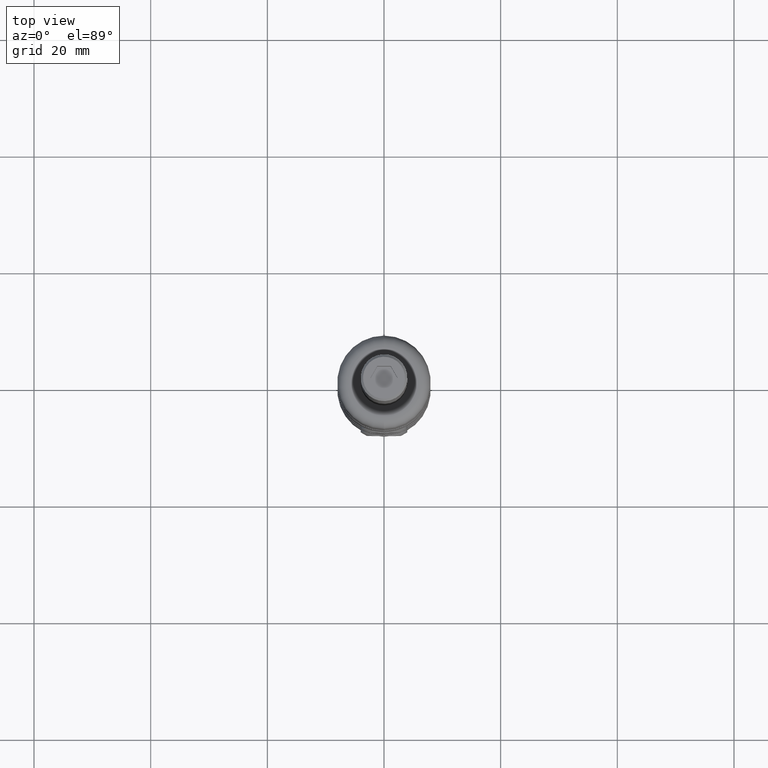
[diagram: clean part render]
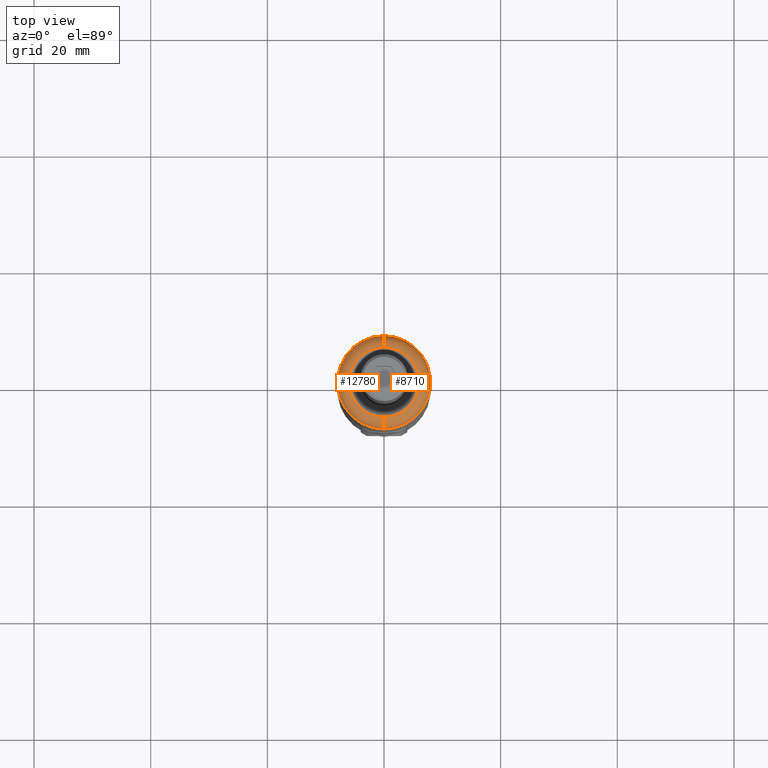
[diagram: same view with one multi-face feature highlighted, each face labeled with its STEP entity id]
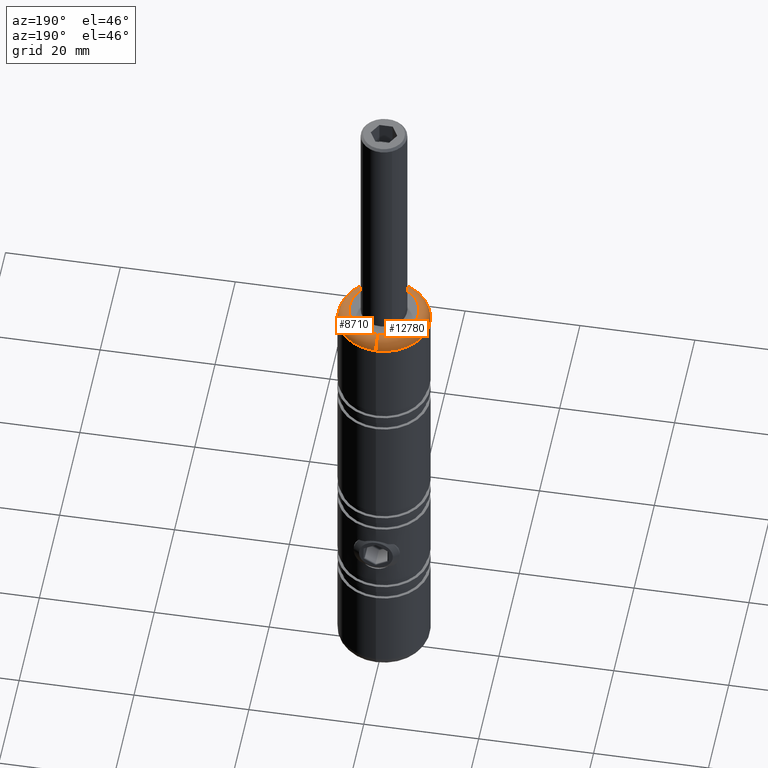
[diagram: same view with one multi-face feature highlighted, each face labeled with its STEP entity id]
A machine part, top view. The highlighted faces form ONE feature: a constant-radius fillet chain: 2 tangent blend faces with common blend radius 2 mm. The faces share edges in the B-rep.
A second angle (auxiliary view) of the same feature is appended — it is thin or edge-on in the first view.
Their STEP definitions:
[1] entity #12780 (Torus):
#325 = CIRCLE ( 'NONE', #9728, 2.000000000000001800 ) ;
#415 = CARTESIAN_POINT ( 'NONE',  ( 0.0000000000000000000, 4.814824860968089600E-032, 40.00000000000000000 ) ) ;
#991 = EDGE_CURVE ( 'NONE', #4758, #13195, #13703, .T. ) ;
#1411 = EDGE_CURVE ( 'NONE', #13195, #12257, #2977, .T. ) ;
#1639 = DIRECTION ( 'NONE',  ( 0.0000000000000000000, -5.922595424346115800E-017, -1.000000000000000000 ) ) ;
#2208 = CARTESIAN_POINT ( 'NONE',  ( 0.0000000000000000000, -7.999999999999989300, 38.00000000000000000 ) ) ;
#2782 = VERTEX_POINT ( 'NONE', #5178 ) ;
#2977 = CIRCLE ( 'NONE', #11578, 7.999999999999989300 ) ;
#3055 = DIRECTION ( 'NONE',  ( 1.000000000000000000, 1.224646799147353200E-016, -7.253087529070231300E-033 ) ) ;
#3366 = CARTESIAN_POINT ( 'NONE',  ( 0.0000000000000000000, 5.999999999999989300, 38.00000000000000000 ) ) ;
#4399 = CARTESIAN_POINT ( 'NONE',  ( 7.347880794884106900E-016, -5.999999999999989300, 38.00000000000000000 ) ) ;
#4524 = DIRECTION ( 'NONE',  ( -0.0000000000000000000, 5.922595424346115800E-017, 1.000000000000000000 ) ) ;
#4650 = CARTESIAN_POINT ( 'NONE',  ( 0.0000000000000000000, -1.184519084869223900E-016, 38.00000000000000000 ) ) ;
#4758 = VERTEX_POINT ( 'NONE', #9021 ) ;
#5178 = CARTESIAN_POINT ( 'NONE',  ( 0.0000000000000000000, 5.999999999999989300, 40.00000000000000000 ) ) ;
#5384 = EDGE_LOOP ( 'NONE', ( #16858, #14968, #9813, #6455 ) ) ;
#5514 = AXIS2_PLACEMENT_3D ( 'NONE', #4650, #12840, #16803 ) ;
#5795 = DIRECTION ( 'NONE',  ( 0.0000000000000000000, 1.000000000000000000, 0.0000000000000000000 ) ) ;
#6455 = ORIENTED_EDGE ( 'NONE', *, *, #1411, .F. ) ;
#7010 = DIRECTION ( 'NONE',  ( 0.0000000000000000000, 1.000000000000000000, 0.0000000000000000000 ) ) ;
#7479 = CIRCLE ( 'NONE', #13354, 5.999999999999989300 ) ;
#7600 = EDGE_CURVE ( 'NONE', #2782, #4758, #7479, .T. ) ;
#8285 = EDGE_CURVE ( 'NONE', #2782, #12257, #325, .T. ) ;
#8775 = DIRECTION ( 'NONE',  ( 0.0000000000000000000, 0.0000000000000000000, 1.000000000000000000 ) ) ;
#9021 = CARTESIAN_POINT ( 'NONE',  ( 8.572527594031460400E-016, -5.999999999999989300, 40.00000000000000000 ) ) ;
#9728 = AXIS2_PLACEMENT_3D ( 'NONE', #3366, #10051, #8775 ) ;
#9813 = ORIENTED_EDGE ( 'NONE', *, *, #8285, .T. ) ;
#10051 = DIRECTION ( 'NONE',  ( -1.000000000000000000, 0.0000000000000000000, -0.0000000000000000000 ) ) ;
#11207 = TOROIDAL_SURFACE ( 'NONE', #5514, 5.999999999999989300, 2.000000000000000000 ) ;
#11578 = AXIS2_PLACEMENT_3D ( 'NONE', #15157, #1639, #7010 ) ;
#12257 = VERTEX_POINT ( 'NONE', #14353 ) ;
#12514 = DIRECTION ( 'NONE',  ( -1.224646799147353500E-016, 1.000000000000000000, 0.0000000000000000000 ) ) ;
#12780 = ADVANCED_FACE ( 'NONE', ( #13757 ), #11207, .T. ) ;
#12840 = DIRECTION ( 'NONE',  ( 0.0000000000000000000, -5.922595424346115800E-017, -1.000000000000000000 ) ) ;
#13195 = VERTEX_POINT ( 'NONE', #2208 ) ;
#13354 = AXIS2_PLACEMENT_3D ( 'NONE', #415, #4524, #5795 ) ;
#13703 = CIRCLE ( 'NONE', #16163, 2.000000000000000000 ) ;
#13757 = FACE_OUTER_BOUND ( 'NONE', #5384, .T. ) ;
#14353 = CARTESIAN_POINT ( 'NONE',  ( 9.797174393178813800E-016, 7.999999999999989300, 38.00000000000000000 ) ) ;
#14968 = ORIENTED_EDGE ( 'NONE', *, *, #7600, .F. ) ;
#15157 = CARTESIAN_POINT ( 'NONE',  ( 0.0000000000000000000, -1.184519084869224400E-016, 38.00000000000000000 ) ) ;
#16163 = AXIS2_PLACEMENT_3D ( 'NONE', #4399, #3055, #12514 ) ;
#16803 = DIRECTION ( 'NONE',  ( 0.0000000000000000000, 1.000000000000000000, -5.922595424346115800E-017 ) ) ;
#16858 = ORIENTED_EDGE ( 'NONE', *, *, #991, .F. ) ;
[2] entity #8710 (Torus):
#52 = EDGE_LOOP ( 'NONE', ( #12178, #17009, #9745, #8299 ) ) ;
#325 = CIRCLE ( 'NONE', #9728, 2.000000000000001800 ) ;
#719 = AXIS2_PLACEMENT_3D ( 'NONE', #13001, #10321, #16274 ) ;
#991 = EDGE_CURVE ( 'NONE', #4758, #13195, #13703, .T. ) ;
#2208 = CARTESIAN_POINT ( 'NONE',  ( 0.0000000000000000000, -7.999999999999989300, 38.00000000000000000 ) ) ;
#2782 = VERTEX_POINT ( 'NONE', #5178 ) ;
#3055 = DIRECTION ( 'NONE',  ( 1.000000000000000000, 1.224646799147353200E-016, -7.253087529070231300E-033 ) ) ;
#3366 = CARTESIAN_POINT ( 'NONE',  ( 0.0000000000000000000, 5.999999999999989300, 38.00000000000000000 ) ) ;
#4399 = CARTESIAN_POINT ( 'NONE',  ( 7.347880794884106900E-016, -5.999999999999989300, 38.00000000000000000 ) ) ;
#4758 = VERTEX_POINT ( 'NONE', #9021 ) ;
#5178 = CARTESIAN_POINT ( 'NONE',  ( 0.0000000000000000000, 5.999999999999989300, 40.00000000000000000 ) ) ;
#5393 = AXIS2_PLACEMENT_3D ( 'NONE', #13344, #13111, #14607 ) ;
#6426 = CIRCLE ( 'NONE', #5393, 5.999999999999989300 ) ;
#6707 = AXIS2_PLACEMENT_3D ( 'NONE', #7663, #15710, #13160 ) ;
#7663 = CARTESIAN_POINT ( 'NONE',  ( 0.0000000000000000000, -1.184519084869223900E-016, 38.00000000000000000 ) ) ;
#8285 = EDGE_CURVE ( 'NONE', #2782, #12257, #325, .T. ) ;
#8299 = ORIENTED_EDGE ( 'NONE', *, *, #8285, .F. ) ;
#8710 = ADVANCED_FACE ( 'NONE', ( #14221 ), #9989, .T. ) ;
#8775 = DIRECTION ( 'NONE',  ( 0.0000000000000000000, 0.0000000000000000000, 1.000000000000000000 ) ) ;
#9021 = CARTESIAN_POINT ( 'NONE',  ( 8.572527594031460400E-016, -5.999999999999989300, 40.00000000000000000 ) ) ;
#9552 = CIRCLE ( 'NONE', #719, 7.999999999999989300 ) ;
#9728 = AXIS2_PLACEMENT_3D ( 'NONE', #3366, #10051, #8775 ) ;
#9745 = ORIENTED_EDGE ( 'NONE', *, *, #12296, .F. ) ;
#9989 = TOROIDAL_SURFACE ( 'NONE', #6707, 5.999999999999989300, 2.000000000000000000 ) ;
#10051 = DIRECTION ( 'NONE',  ( -1.000000000000000000, 0.0000000000000000000, -0.0000000000000000000 ) ) ;
#10321 = DIRECTION ( 'NONE',  ( 0.0000000000000000000, -5.922595424346115800E-017, -1.000000000000000000 ) ) ;
#10741 = EDGE_CURVE ( 'NONE', #4758, #2782, #6426, .T. ) ;
#12178 = ORIENTED_EDGE ( 'NONE', *, *, #10741, .F. ) ;
#12257 = VERTEX_POINT ( 'NONE', #14353 ) ;
#12296 = EDGE_CURVE ( 'NONE', #12257, #13195, #9552, .T. ) ;
#12514 = DIRECTION ( 'NONE',  ( -1.224646799147353500E-016, 1.000000000000000000, 0.0000000000000000000 ) ) ;
#13001 = CARTESIAN_POINT ( 'NONE',  ( 0.0000000000000000000, -1.184519084869224400E-016, 38.00000000000000000 ) ) ;
#13111 = DIRECTION ( 'NONE',  ( -0.0000000000000000000, 5.922595424346115800E-017, 1.000000000000000000 ) ) ;
#13160 = DIRECTION ( 'NONE',  ( 0.0000000000000000000, 1.000000000000000000, -5.922595424346115800E-017 ) ) ;
#13195 = VERTEX_POINT ( 'NONE', #2208 ) ;
#13344 = CARTESIAN_POINT ( 'NONE',  ( 0.0000000000000000000, 4.814824860968089600E-032, 40.00000000000000000 ) ) ;
#13703 = CIRCLE ( 'NONE', #16163, 2.000000000000000000 ) ;
#14221 = FACE_OUTER_BOUND ( 'NONE', #52, .T. ) ;
#14353 = CARTESIAN_POINT ( 'NONE',  ( 9.797174393178813800E-016, 7.999999999999989300, 38.00000000000000000 ) ) ;
#14607 = DIRECTION ( 'NONE',  ( 0.0000000000000000000, 1.000000000000000000, 0.0000000000000000000 ) ) ;
#15710 = DIRECTION ( 'NONE',  ( 0.0000000000000000000, -5.922595424346115800E-017, -1.000000000000000000 ) ) ;
#16163 = AXIS2_PLACEMENT_3D ( 'NONE', #4399, #3055, #12514 ) ;
#16274 = DIRECTION ( 'NONE',  ( 0.0000000000000000000, 1.000000000000000000, 0.0000000000000000000 ) ) ;
#17009 = ORIENTED_EDGE ( 'NONE', *, *, #991, .T. ) ;